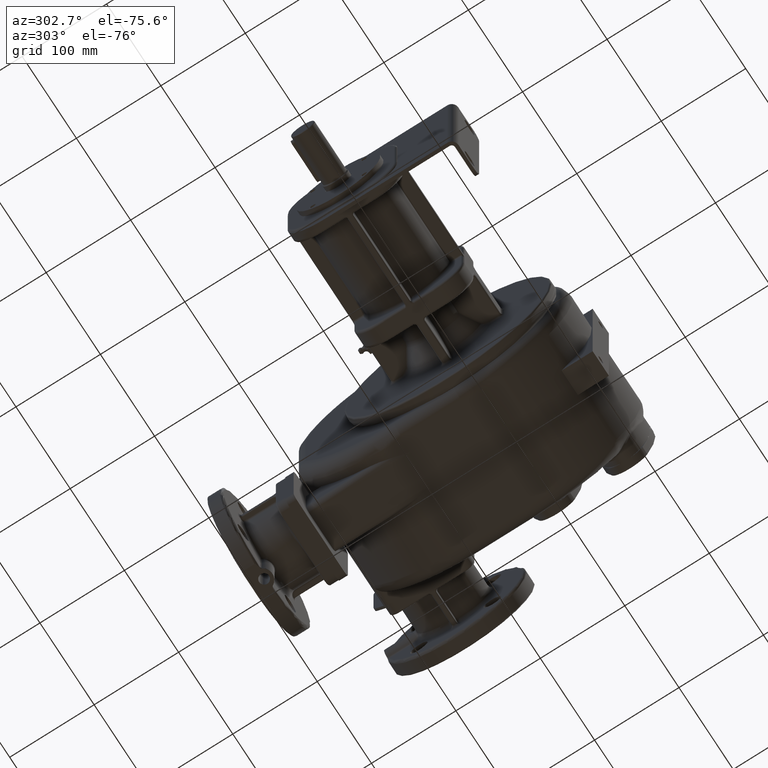
[diagram: clean part render]
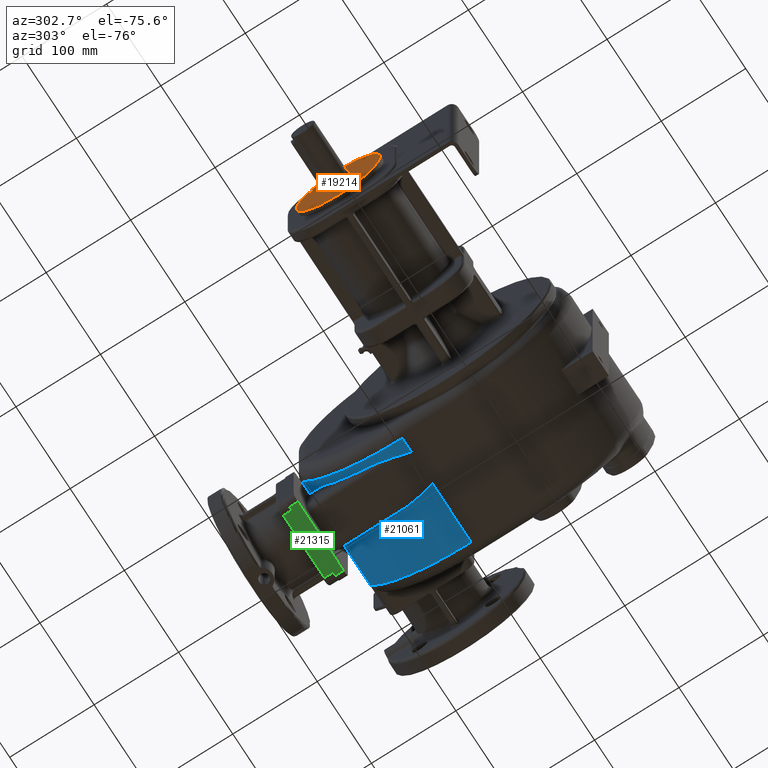
[diagram: same view with three faces highlighted in distinct colors, each labeled with its STEP entity id]
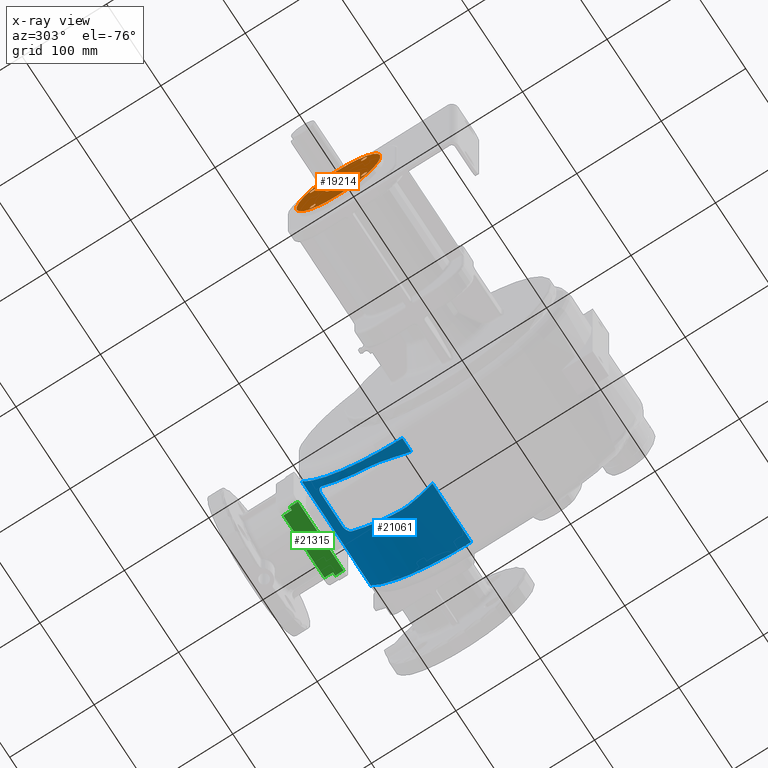
[diagram: x-ray of the same camera — body ghosted, the three highlighted faces saturated]
A machine part, auxiliary view with three faces highlighted in distinct colors.
The next image is the same camera in x-ray (body ghosted, the three faces saturated) — at least one of them is partly hidden behind the body in this view.
Their STEP definitions:

[orange] entity #19214 — the highlighted planar face has unit normal (-1, 0, 0).
#1217=CARTESIAN_POINT('',(-2.785E2,1.32E2,0.E0));
#1218=DIRECTION('',(-1.E0,0.E0,0.E0));
#1219=DIRECTION('',(0.E0,-1.599613797088E-14,-1.E0));
#1220=AXIS2_PLACEMENT_3D('',#1217,#1218,#1219);
#1226=CARTESIAN_POINT('',(-2.785E2,1.32E2,0.E0));
#1227=DIRECTION('',(1.E0,0.E0,0.E0));
#1228=DIRECTION('',(0.E0,-1.599613797088E-14,-1.E0));
#1229=AXIS2_PLACEMENT_3D('',#1226,#1227,#1228);
#1235=CARTESIAN_POINT('',(-2.785E2,1.624055915910E2,3.040559159102E1));
#1236=DIRECTION('',(1.E0,0.E0,0.E0));
#1237=DIRECTION('',(0.E0,1.624097681737E-14,1.E0));
#1238=AXIS2_PLACEMENT_3D('',#1235,#1236,#1237);
#1240=CARTESIAN_POINT('',(-2.785E2,1.624055915910E2,3.040559159102E1));
#1241=DIRECTION('',(1.E0,0.E0,0.E0));
#1242=DIRECTION('',(0.E0,-1.624097681737E-14,-1.E0));
#1243=AXIS2_PLACEMENT_3D('',#1240,#1241,#1242);
#1245=CARTESIAN_POINT('',(-2.785E2,1.624055915910E2,-3.040559159102E1));
#1246=DIRECTION('',(1.E0,0.E0,0.E0));
#1247=DIRECTION('',(0.E0,1.E0,-1.624097681737E-14));
#1248=AXIS2_PLACEMENT_3D('',#1245,#1246,#1247);
#1250=CARTESIAN_POINT('',(-2.785E2,1.624055915910E2,-3.040559159102E1));
#1251=DIRECTION('',(1.E0,0.E0,0.E0));
#1252=DIRECTION('',(0.E0,-1.E0,1.624097681737E-14));
#1253=AXIS2_PLACEMENT_3D('',#1250,#1251,#1252);
#1255=CARTESIAN_POINT('',(-2.785E2,1.015944084090E2,-3.040559159102E1));
#1256=DIRECTION('',(1.E0,0.E0,0.E0));
#1257=DIRECTION('',(0.E0,-1.624097681737E-14,-1.E0));
#1258=AXIS2_PLACEMENT_3D('',#1255,#1256,#1257);
#1260=CARTESIAN_POINT('',(-2.785E2,1.015944084090E2,-3.040559159102E1));
#1261=DIRECTION('',(1.E0,0.E0,0.E0));
#1262=DIRECTION('',(0.E0,1.624097681737E-14,1.E0));
#1263=AXIS2_PLACEMENT_3D('',#1260,#1261,#1262);
#1265=CARTESIAN_POINT('',(-2.785E2,1.015944084090E2,3.040559159102E1));
#1266=DIRECTION('',(1.E0,0.E0,0.E0));
#1267=DIRECTION('',(0.E0,-1.E0,1.624097681737E-14));
#1268=AXIS2_PLACEMENT_3D('',#1265,#1266,#1267);
#1270=CARTESIAN_POINT('',(-2.785E2,1.015944084090E2,3.040559159102E1));
#1271=DIRECTION('',(1.E0,0.E0,0.E0));
#1272=DIRECTION('',(0.E0,1.E0,-1.624097681737E-14));
#1273=AXIS2_PLACEMENT_3D('',#1270,#1271,#1272);
#1275=CARTESIAN_POINT('',(-2.785E2,1.32E2,0.E0));
#1276=DIRECTION('',(1.E0,0.E0,0.E0));
#1277=DIRECTION('',(0.E0,1.650292805636E-14,1.E0));
#1278=AXIS2_PLACEMENT_3D('',#1275,#1276,#1277);
#1280=CARTESIAN_POINT('',(-2.785E2,1.32E2,0.E0));
#1281=DIRECTION('',(1.E0,0.E0,0.E0));
#1282=DIRECTION('',(0.E0,-1.650292805636E-14,-1.E0));
#1283=AXIS2_PLACEMENT_3D('',#1280,#1281,#1282);
#18040=CARTESIAN_POINT('',(-2.785E2,1.32E2,-4.975E1));
#18041=CARTESIAN_POINT('',(-2.785E2,1.32E2,4.975E1));
#18042=VERTEX_POINT('',#18040);
#18043=VERTEX_POINT('',#18041);
#18044=CARTESIAN_POINT('',(-2.785E2,1.624055915910E2,3.390559159102E1));
#18045=CARTESIAN_POINT('',(-2.785E2,1.624055915910E2,2.690559159102E1));
#18046=VERTEX_POINT('',#18044);
#18047=VERTEX_POINT('',#18045);
#18048=CARTESIAN_POINT('',(-2.785E2,1.659055915910E2,-3.040559159102E1));
#18049=CARTESIAN_POINT('',(-2.785E2,1.589055915910E2,-3.040559159102E1));
#18050=VERTEX_POINT('',#18048);
#18051=VERTEX_POINT('',#18049);
#18052=CARTESIAN_POINT('',(-2.785E2,1.015944084090E2,-3.390559159102E1));
#18053=CARTESIAN_POINT('',(-2.785E2,1.015944084090E2,-2.690559159102E1));
#18054=VERTEX_POINT('',#18052);
#18055=VERTEX_POINT('',#18053);
#18056=CARTESIAN_POINT('',(-2.785E2,9.809440840898E1,3.040559159102E1));
#18057=CARTESIAN_POINT('',(-2.785E2,1.050944084090E2,3.040559159102E1));
#18058=VERTEX_POINT('',#18056);
#18059=VERTEX_POINT('',#18057);
#18060=CARTESIAN_POINT('',(-2.785E2,1.32E2,1.55E1));
#18061=CARTESIAN_POINT('',(-2.785E2,1.32E2,-1.55E1));
#18062=VERTEX_POINT('',#18060);
#18063=VERTEX_POINT('',#18061);
#19175=CARTESIAN_POINT('',(-2.785E2,1.32E2,0.E0));
#19176=DIRECTION('',(-1.E0,0.E0,0.E0));
#19177=DIRECTION('',(0.E0,1.626476731076E-14,1.E0));
#19178=AXIS2_PLACEMENT_3D('',#19175,#19176,#19177);
#19179=PLANE('',#19178);
#19180=ORIENTED_EDGE('',*,*,#19155,.F.);
#19181=ORIENTED_EDGE('',*,*,#19169,.T.);
#19182=EDGE_LOOP('',(#19180,#19181));
#19183=FACE_OUTER_BOUND('',#19182,.F.);
#19185=ORIENTED_EDGE('',*,*,#19184,.F.);
#19187=ORIENTED_EDGE('',*,*,#19186,.F.);
#19188=EDGE_LOOP('',(#19185,#19187));
#19189=FACE_BOUND('',#19188,.F.);
#19191=ORIENTED_EDGE('',*,*,#19190,.F.);
#19193=ORIENTED_EDGE('',*,*,#19192,.F.);
#19194=EDGE_LOOP('',(#19191,#19193));
#19195=FACE_BOUND('',#19194,.F.);
#19197=ORIENTED_EDGE('',*,*,#19196,.F.);
#19199=ORIENTED_EDGE('',*,*,#19198,.F.);
#19200=EDGE_LOOP('',(#19197,#19199));
#19201=FACE_BOUND('',#19200,.F.);
#19203=ORIENTED_EDGE('',*,*,#19202,.F.);
#19205=ORIENTED_EDGE('',*,*,#19204,.F.);
#19206=EDGE_LOOP('',(#19203,#19205));
#19207=FACE_BOUND('',#19206,.F.);
#19209=ORIENTED_EDGE('',*,*,#19208,.F.);
#19211=ORIENTED_EDGE('',*,*,#19210,.F.);
#19212=EDGE_LOOP('',(#19209,#19211));
#19213=FACE_BOUND('',#19212,.F.);
#19214=ADVANCED_FACE('',(#19183,#19189,#19195,#19201,#19207,#19213),#19179,.T.);
#1221=CIRCLE('',#1220,4.975E1);
#1230=CIRCLE('',#1229,4.975E1);
#1239=CIRCLE('',#1238,3.5E0);
#1244=CIRCLE('',#1243,3.5E0);
#1249=CIRCLE('',#1248,3.5E0);
#1254=CIRCLE('',#1253,3.5E0);
#1259=CIRCLE('',#1258,3.5E0);
#1264=CIRCLE('',#1263,3.5E0);
#1269=CIRCLE('',#1268,3.5E0);
#1274=CIRCLE('',#1273,3.5E0);
#1279=CIRCLE('',#1278,1.55E1);
#1284=CIRCLE('',#1283,1.55E1);
#19155=EDGE_CURVE('',#18042,#18043,#1221,.T.);
#19169=EDGE_CURVE('',#18042,#18043,#1230,.T.);
#19184=EDGE_CURVE('',#18046,#18047,#1239,.T.);
#19186=EDGE_CURVE('',#18047,#18046,#1244,.T.);
#19190=EDGE_CURVE('',#18050,#18051,#1249,.T.);
#19192=EDGE_CURVE('',#18051,#18050,#1254,.T.);
#19196=EDGE_CURVE('',#18054,#18055,#1259,.T.);
#19198=EDGE_CURVE('',#18055,#18054,#1264,.T.);
#19202=EDGE_CURVE('',#18058,#18059,#1269,.T.);
#19204=EDGE_CURVE('',#18059,#18058,#1274,.T.);
#19208=EDGE_CURVE('',#18062,#18063,#1279,.T.);
#19210=EDGE_CURVE('',#18063,#18062,#1284,.T.);

[blue] entity #21061 — the highlighted cylindrical surface (partial cylindrical patch) has radius 131 mm, axis along (-1, 0, 0).
#2815=DIRECTION('',(-9.999999999999E-1,-1.196786193784E-7,3.394288251132E-7));
#2816=VECTOR('',#2815,1.269991031286E2);
#2817=CARTESIAN_POINT('',(7.6E1,3.212649998907E2,-5.484959349593E1));
#2818=LINE('',#2817,#2816);
#2917=CARTESIAN_POINT('',(-4.25E1,2.023006266804E2,0.E0));
#2918=DIRECTION('',(-1.E0,0.E0,0.E0));
#2919=DIRECTION('',(0.E0,7.673559470460E-1,-6.412213740458E-1));
#2920=AXIS2_PLACEMENT_3D('',#2917,#2918,#2919);
#2922=DIRECTION('',(-1.E0,0.E0,0.E0));
#2923=VECTOR('',#2922,3.9E1);
#2924=CARTESIAN_POINT('',(4.5E0,3.090011421430E2,-7.6E1));
#2925=LINE('',#2924,#2923);
#2926=CARTESIAN_POINT('',(1.25E1,2.023006266804E2,0.E0));
#2927=DIRECTION('',(-1.E0,0.E0,0.E0));
#2928=DIRECTION('',(0.E0,7.673559470460E-1,-6.412213740458E-1));
#2929=AXIS2_PLACEMENT_3D('',#2926,#2927,#2928);
#2931=DIRECTION('',(1.E0,-5.557139829889E-12,0.E0));
#2932=VECTOR('',#2931,7.15E1);
#2933=CARTESIAN_POINT('',(4.5E0,2.023006266804E2,-1.31E2));
#2934=LINE('',#2933,#2932);
#2935=CARTESIAN_POINT('',(7.6E1,2.023006266804E2,0.E0));
#2936=DIRECTION('',(1.E0,0.E0,0.E0));
#2937=DIRECTION('',(0.E0,0.E0,-1.E0));
#2938=AXIS2_PLACEMENT_3D('',#2935,#2936,#2937);
#2940=CARTESIAN_POINT('',(-5.1E1,2.023006266804E2,0.E0));
#2941=DIRECTION('',(-1.E0,0.E0,0.E0));
#2942=DIRECTION('',(0.E0,9.081251261266E-1,-4.186988838026E-1));
#2943=AXIS2_PLACEMENT_3D('',#2940,#2941,#2942);
#2945=DIRECTION('',(1.E0,2.411538981974E-14,0.E0));
#2946=VECTOR('',#2945,1.65E1);
#2947=CARTESIAN_POINT('',(-5.1E1,2.023006266804E2,-1.31E2));
#2948=LINE('',#2947,#2946);
#2957=CARTESIAN_POINT('',(-3.45E1,3.090011421430E2,-7.6E1));
#2958=CARTESIAN_POINT('',(-3.459724486776E1,3.090011421430E2,-7.6E1));
#2959=CARTESIAN_POINT('',(-3.479181504130E1,3.089986168852E2,
-7.600354553474E1));
#2960=CARTESIAN_POINT('',(-3.508360184417E1,3.089872281471E2,
-7.601953226601E1));
#2961=CARTESIAN_POINT('',(-3.537469199050E1,3.089682462580E2,
-7.604616649539E1));
#2962=CARTESIAN_POINT('',(-3.566550405066E1,3.089415929579E2,
-7.608354106420E1));
#2963=CARTESIAN_POINT('',(-3.595537102771E1,3.089072468543E2,
-7.613166204421E1));
#2964=CARTESIAN_POINT('',(-3.624420752406E1,3.088651410500E2,
-7.619059231310E1));
#2965=CARTESIAN_POINT('',(-3.653204715585E1,3.088151399899E2,
-7.626048324387E1));
#2966=CARTESIAN_POINT('',(-3.681807699250E1,3.087572565823E2,
-7.634127128463E1));
#2967=CARTESIAN_POINT('',(-3.710262664661E1,3.086912711435E2,
-7.643320984477E1));
#2968=CARTESIAN_POINT('',(-3.738508148161E1,3.086171280341E2,
-7.653631494552E1));
#2969=CARTESIAN_POINT('',(-3.766508847851E1,3.085347319782E2,
-7.665065016117E1));
#2970=CARTESIAN_POINT('',(-3.794269574346E1,3.084438239556E2,
-7.677649667391E1));
#2971=CARTESIAN_POINT('',(-3.821703145047E1,3.083444356222E2,
-7.691372430686E1));
#2972=CARTESIAN_POINT('',(-3.848825222746E1,3.082362256190E2,
-7.706270875633E1));
#2973=CARTESIAN_POINT('',(-3.875553632871E1,3.081191961750E2,
-7.722334170492E1));
#2974=CARTESIAN_POINT('',(-3.901867919963E1,3.079931015693E2,
-7.739584647799E1));
#2975=CARTESIAN_POINT('',(-3.927717678390E1,3.078577912390E2,
-7.758030425889E1));
#2976=CARTESIAN_POINT('',(-3.953044465794E1,3.077131636607E2,
-7.777671980958E1));
#2977=CARTESIAN_POINT('',(-3.977810764060E1,3.075589736334E2,
-7.798528155474E1));
#2978=CARTESIAN_POINT('',(-4.001934075039E1,3.073952559270E2,
-7.820578941208E1));
#2979=CARTESIAN_POINT('',(-4.025399396553E1,3.072215710518E2,
-7.843867094021E1));
#2980=CARTESIAN_POINT('',(-4.048113648156E1,3.070379930416E2,
-7.868365079593E1));
#2981=CARTESIAN_POINT('',(-4.069990622179E1,3.068446253037E2,
-7.894041055938E1));
#2982=CARTESIAN_POINT('',(-4.090970358624E1,3.066413817646E2,
-7.920887831691E1));
#2983=CARTESIAN_POINT('',(-4.111019771927E1,3.064278372557E2,
-7.948941621964E1));
#2984=CARTESIAN_POINT('',(-4.130035077808E1,3.062042615388E2,
-7.978146109916E1));
#2985=CARTESIAN_POINT('',(-4.147918953071E1,3.059710319217E2,
-8.008431603510E1));
#2986=CARTESIAN_POINT('',(-4.164631423803E1,3.057278017253E2,
-8.039822123051E1));
#2987=CARTESIAN_POINT('',(-4.180090082711E1,3.054747298293E2,
-8.072275274667E1));
#2988=CARTESIAN_POINT('',(-4.194202662413E1,3.052122602071E2,
-8.105712624343E1));
#2989=CARTESIAN_POINT('',(-4.206887921156E1,3.049408626875E2,
-8.140053881093E1));
#2990=CARTESIAN_POINT('',(-4.218097661228E1,3.046603006435E2,
-8.175308321088E1));
#2991=CARTESIAN_POINT('',(-4.227739569685E1,3.043714068954E2,
-8.211351006068E1));
#2992=CARTESIAN_POINT('',(-4.235739556479E1,3.040750405582E2,
-8.248056919416E1));
#2993=CARTESIAN_POINT('',(-4.242044680207E1,3.037717196800E2,
-8.285345931517E1));
#2994=CARTESIAN_POINT('',(-4.246609495278E1,3.034616025940E2,
-8.323183269761E1));
#2995=CARTESIAN_POINT('',(-4.249378099853E1,3.031456660803E2,
-8.361435868256E1));
#2996=CARTESIAN_POINT('',(-4.25E1,3.029319000095E2,-8.387118104428E1));
#2997=CARTESIAN_POINT('',(-4.25E1,3.028242557434E2,-8.4E1));
#3012=CARTESIAN_POINT('',(1.25E1,3.028242557434E2,-8.4E1));
#3013=CARTESIAN_POINT('',(1.25E1,3.029319001551E2,-8.387118087009E1));
#3014=CARTESIAN_POINT('',(1.249378098688E1,3.031456661184E2,-8.361435863510E1));
#3015=CARTESIAN_POINT('',(1.246609505432E1,3.034616011975E2,-8.323183438534E1));
#3016=CARTESIAN_POINT('',(1.242044750055E1,3.037717158972E2,-8.285346395207E1));
#3017=CARTESIAN_POINT('',(1.235739612445E1,3.040750375877E2,-8.248057283764E1));
#3018=CARTESIAN_POINT('',(1.227740039745E1,3.043713905410E2,-8.211353035773E1));
#3019=CARTESIAN_POINT('',(1.218098344424E1,3.046602821339E2,-8.175310639450E1));
#3020=CARTESIAN_POINT('',(1.206888537713E1,3.049408487715E2,-8.140055637643E1));
#3021=CARTESIAN_POINT('',(1.194203144354E1,3.052122505007E2,-8.105713856071E1));
#3022=CARTESIAN_POINT('',(1.180091028362E1,3.054747130416E2,-8.072277418473E1));
#3023=CARTESIAN_POINT('',(1.164632458624E1,3.057277861940E2,-8.039824124108E1));
#3024=CARTESIAN_POINT('',(1.147919193994E1,3.059710286724E2,-8.008432024686E1));
#3025=CARTESIAN_POINT('',(1.130036007887E1,3.062042497351E2,-7.978147644989E1));
#3026=CARTESIAN_POINT('',(1.111020975584E1,3.064278237777E2,-7.948943387658E1));
#3027=CARTESIAN_POINT('',(1.090971380572E1,3.066413717636E2,-7.920889151945E1));
#3028=CARTESIAN_POINT('',(1.069990338802E1,3.068446279127E2,-7.894040710382E1));
#3029=CARTESIAN_POINT('',(1.048114726141E1,3.070379836631E2,-7.868366325970E1));
#3030=CARTESIAN_POINT('',(1.025400432831E1,3.072215631418E2,-7.843868153032E1));
#3031=CARTESIAN_POINT('',(1.001934748614E1,3.073952513261E2,-7.820579560639E1));
#3032=CARTESIAN_POINT('',(9.778105846781E0,3.075589747694E2,-7.798528002009E1));
#3033=CARTESIAN_POINT('',(9.530450897339E0,3.077131599459E2,-7.777672484409E1));
#3034=CARTESIAN_POINT('',(9.277174551714E0,3.078577924763E2,-7.758030257743E1));
#3035=CARTESIAN_POINT('',(9.018684525791E0,3.079930988930E2,-7.739585013171E1));
#3036=CARTESIAN_POINT('',(8.755533436978E0,3.081191975347E2,-7.722333984405E1));
#3037=CARTESIAN_POINT('',(8.488255993760E0,3.082362239907E2,-7.706271099200E1));
#3038=CARTESIAN_POINT('',(8.217031677502E0,3.083444355891E2,-7.691372435494E1));
#3039=CARTESIAN_POINT('',(7.942696480271E0,3.084438236573E2,-7.677649708472E1));
#3040=CARTESIAN_POINT('',(7.665091403858E0,3.085347311015E2,-7.665065137723E1));
#3041=CARTESIAN_POINT('',(7.385079733211E0,3.086171285169E2,-7.653631427480E1));
#3042=CARTESIAN_POINT('',(7.102630290181E0,3.086912702070E2,-7.643321114740E1));
#3043=CARTESIAN_POINT('',(6.818079624714E0,3.087572560249E2,-7.634127206230E1));
#3044=CARTESIAN_POINT('',(6.532050936199E0,3.088151392585E2,-7.626048426512E1));
#3045=CARTESIAN_POINT('',(6.244213445799E0,3.088651400819E2,-7.619059366707E1));
#3046=CARTESIAN_POINT('',(5.955378676321E0,3.089072458496E2,-7.613166345120E1));
#3047=CARTESIAN_POINT('',(5.665509321825E0,3.089415924243E2,-7.608354181234E1));
#3048=CARTESIAN_POINT('',(5.374696203747E0,3.089682459361E2,-7.604616694685E1));
#3049=CARTESIAN_POINT('',(5.083604442673E0,3.089872280294E2,-7.601953243129E1));
#3050=CARTESIAN_POINT('',(4.791815777660E0,3.089986168784E2,-7.600354554428E1));
#3051=CARTESIAN_POINT('',(4.597245045524E0,3.090011421430E2,-7.6E1));
#3052=CARTESIAN_POINT('',(4.5E0,3.090011421430E2,-7.6E1));
#3067=CARTESIAN_POINT('',(4.5E0,2.023006266804E2,-1.31E2));
#3068=CARTESIAN_POINT('',(4.727736695972E0,2.032221867946E2,-1.31E2));
#3069=CARTESIAN_POINT('',(5.182321418977E0,2.050617124844E2,-1.309805753678E2));
#3070=CARTESIAN_POINT('',(5.859071663427E0,2.078143816798E2,-1.308935201970E2));
#3071=CARTESIAN_POINT('',(6.523859954939E0,2.105465790915E2,-1.307496799500E2));
#3072=CARTESIAN_POINT('',(7.171379268795E0,2.132500234009E2,-1.305508733081E2));
#3073=CARTESIAN_POINT('',(7.795824866082E0,2.159133634673E2,-1.302998213292E2));
#3074=CARTESIAN_POINT('',(8.392813868005E0,2.185299431181E2,-1.299995446422E2));
#3075=CARTESIAN_POINT('',(8.958290726227E0,2.210931887684E2,-1.296534847563E2));
#3076=CARTESIAN_POINT('',(9.488319034254E0,2.235954805535E2,-1.292656637600E2));
#3077=CARTESIAN_POINT('',(9.977883236299E0,2.260213628826E2,-1.288420919612E2));
#3078=CARTESIAN_POINT('',(1.042449411197E1,2.283638414367E2,-1.283882799074E2));
#3079=CARTESIAN_POINT('',(1.083045175144E1,2.306396267241E2,-1.279049718178E2));
#3080=CARTESIAN_POINT('',(1.119825793896E1,2.328730116473E2,-1.273892891399E2));
#3081=CARTESIAN_POINT('',(1.151718057311E1,2.350061596496E2,-1.268575807240E2));
#3082=CARTESIAN_POINT('',(1.177678284526E1,2.369508627393E2,-1.263390145717E2));
#3083=CARTESIAN_POINT('',(1.197742542474E1,2.386542507745E2,-1.258584435303E2));
#3084=CARTESIAN_POINT('',(1.213594443659E1,2.401993593427E2,-1.254013156583E2));
#3085=CARTESIAN_POINT('',(1.226261170392E1,2.416515537144E2,-1.249530304816E2));
#3086=CARTESIAN_POINT('',(1.236460712547E1,2.430883625028E2,-1.244914566926E2));
#3087=CARTESIAN_POINT('',(1.244081404903E1,2.445238137150E2,-1.240119603618E2));
#3088=CARTESIAN_POINT('',(1.248868586956E1,2.459539290360E2,-1.235158024478E2));
#3089=CARTESIAN_POINT('',(1.25E1,2.469041774976E2,-1.231737726913E2));
#3090=CARTESIAN_POINT('',(1.25E1,2.473783373587E2,-1.23E2));
#5951=CARTESIAN_POINT('',(-4.25E1,2.473783373587E2,-1.23E2));
#5952=CARTESIAN_POINT('',(-4.25E1,2.469032896646E2,-1.231740980692E2));
#5953=CARTESIAN_POINT('',(-4.248862549183E1,2.459229492528E2,
-1.235271402122E2));
#5954=CARTESIAN_POINT('',(-4.243474763873E1,2.443612505757E2,
-1.240679798519E2));
#5955=CARTESIAN_POINT('',(-4.234171007546E1,2.427084724944E2,
-1.246164849619E2));
#5956=CARTESIAN_POINT('',(-4.220745705855E1,2.409639574121E2,
-1.251691565277E2));
#5957=CARTESIAN_POINT('',(-4.203013769897E1,2.391265198637E2,
-1.257224616767E2));
#5958=CARTESIAN_POINT('',(-4.180836171566E1,2.371966636606E2,
-1.262721982531E2));
#5959=CARTESIAN_POINT('',(-4.154091810173E1,2.351736410211E2,
-1.268143802411E2));
#5960=CARTESIAN_POINT('',(-4.122739965531E1,2.330600866980E2,
-1.273440165690E2));
#5961=CARTESIAN_POINT('',(-4.086777708970E1,2.308579407750E2,
-1.278563418462E2));
#5962=CARTESIAN_POINT('',(-4.046265783567E1,2.285703845816E2,
-1.283463406808E2));
#5963=CARTESIAN_POINT('',(-4.001332158917E1,2.262016198908E2,
-1.288089345767E2));
#5964=CARTESIAN_POINT('',(-3.952160200152E1,2.237562068219E2,
-1.292391866628E2));
#5965=CARTESIAN_POINT('',(-3.899014228508E1,2.212403044397E2,
-1.296321744622E2));
#5966=CARTESIAN_POINT('',(-3.842210521612E1,2.186602388800E2,
-1.299833407984E2));
#5967=CARTESIAN_POINT('',(-3.782140741864E1,2.160237194145E2,
-1.302883914704E2));
#5968=CARTESIAN_POINT('',(-3.719246075257E1,2.133387712594E2,
-1.305435490568E2));
#5969=CARTESIAN_POINT('',(-3.654021248756E1,2.106141522641E2,
-1.307455521025E2));
#5970=CARTESIAN_POINT('',(-3.587020629426E1,2.078597918418E2,
-1.308917568164E2));
#5971=CARTESIAN_POINT('',(-3.518801953874E1,2.050847713946E2,
-1.309802465130E2));
#5972=CARTESIAN_POINT('',(-3.472964907344E1,2.032299254279E2,-1.31E2));
#5973=CARTESIAN_POINT('',(-3.45E1,2.023006266804E2,-1.31E2));
#16120=CARTESIAN_POINT('',(4.5E0,2.023006266804E2,-1.31E2));
#16122=VERTEX_POINT('',#16120);
#16124=CARTESIAN_POINT('',(1.25E1,2.473783373587E2,-1.23E2));
#16126=VERTEX_POINT('',#16124);
#16128=CARTESIAN_POINT('',(1.25E1,3.028242557434E2,-8.4E1));
#16130=VERTEX_POINT('',#16128);
#16132=CARTESIAN_POINT('',(4.5E0,3.090011421430E2,-7.6E1));
#16134=VERTEX_POINT('',#16132);
#16136=CARTESIAN_POINT('',(-3.45E1,3.090011421430E2,-7.6E1));
#16138=VERTEX_POINT('',#16136);
#16140=CARTESIAN_POINT('',(-4.25E1,3.028242557434E2,-8.4E1));
#16142=VERTEX_POINT('',#16140);
#16144=CARTESIAN_POINT('',(-4.25E1,2.473783373587E2,-1.23E2));
#16146=VERTEX_POINT('',#16144);
#16148=CARTESIAN_POINT('',(-3.45E1,2.023006266804E2,-1.31E2));
#16150=VERTEX_POINT('',#16148);
#16200=CARTESIAN_POINT('',(7.6E1,2.023006266804E2,-1.31E2));
#16201=CARTESIAN_POINT('',(7.6E1,3.212649998907E2,-5.484959349594E1));
#16202=VERTEX_POINT('',#16200);
#16203=VERTEX_POINT('',#16201);
#16238=CARTESIAN_POINT('',(-5.1E1,3.212650182029E2,-5.484955377814E1));
#16239=CARTESIAN_POINT('',(-5.1E1,2.023006266804E2,-1.31E2));
#16240=VERTEX_POINT('',#16238);
#16241=VERTEX_POINT('',#16239);
#21032=CARTESIAN_POINT('',(-6.6E1,2.023006266804E2,0.E0));
#21033=DIRECTION('',(-1.E0,0.E0,0.E0));
#21034=DIRECTION('',(0.E0,0.E0,1.E0));
#21035=AXIS2_PLACEMENT_3D('',#21032,#21033,#21034);
#21036=CYLINDRICAL_SURFACE('',#21035,1.31E2);
#21038=ORIENTED_EDGE('',*,*,#21037,.F.);
#21040=ORIENTED_EDGE('',*,*,#21039,.F.);
#21042=ORIENTED_EDGE('',*,*,#21041,.F.);
#21044=ORIENTED_EDGE('',*,*,#21043,.F.);
#21046=ORIENTED_EDGE('',*,*,#21045,.T.);
#21048=ORIENTED_EDGE('',*,*,#21047,.F.);
#21050=ORIENTED_EDGE('',*,*,#21049,.T.);
#21052=ORIENTED_EDGE('',*,*,#21051,.T.);
#21053=ORIENTED_EDGE('',*,*,#20955,.T.);
#21054=ORIENTED_EDGE('',*,*,#21026,.T.);
#21056=ORIENTED_EDGE('',*,*,#21055,.T.);
#21058=ORIENTED_EDGE('',*,*,#21057,.F.);
#21059=EDGE_LOOP('',(#21038,#21040,#21042,#21044,#21046,#21048,#21050,#21052,
#21053,#21054,#21056,#21058));
#21060=FACE_OUTER_BOUND('',#21059,.F.);
#21061=ADVANCED_FACE('',(#21060),#21036,.T.);
#2921=CIRCLE('',#2920,1.31E2);
#2930=CIRCLE('',#2929,1.31E2);
#2939=CIRCLE('',#2938,1.31E2);
#2944=CIRCLE('',#2943,1.31E2);
#2998=B_SPLINE_CURVE_WITH_KNOTS('',3,(#2957,#2958,#2959,#2960,#2961,#2962,#2963,
#2964,#2965,#2966,#2967,#2968,#2969,#2970,#2971,#2972,#2973,#2974,#2975,#2976,
#2977,#2978,#2979,#2980,#2981,#2982,#2983,#2984,#2985,#2986,#2987,#2988,#2989,
#2990,#2991,#2992,#2993,#2994,#2995,#2996,#2997),.UNSPECIFIED.,.F.,.F.,(4,1,1,1,
1,1,1,1,1,1,1,1,1,1,1,1,1,1,1,1,1,1,1,1,1,1,1,1,1,1,1,1,1,1,1,1,1,1,4),(0.E0,
2.631578947368E-2,5.263157894737E-2,7.894736842105E-2,1.052631578947E-1,
1.315789473684E-1,1.578947368421E-1,1.842105263158E-1,2.105263157895E-1,
2.368421052632E-1,2.631578947368E-1,2.894736842105E-1,3.157894736842E-1,
3.421052631579E-1,3.684210526316E-1,3.947368421053E-1,4.210526315789E-1,
4.473684210526E-1,4.736842105263E-1,5.E-1,5.263157894737E-1,5.526315789474E-1,
5.789473684211E-1,6.052631578947E-1,6.315789473684E-1,6.578947368421E-1,
6.842105263158E-1,7.105263157895E-1,7.368421052632E-1,7.631578947368E-1,
7.894736842105E-1,8.157894736842E-1,8.421052631579E-1,8.684210526316E-1,
8.947368421053E-1,9.210526315789E-1,9.473684210526E-1,9.736842105263E-1,1.E0),
.UNSPECIFIED.);
#3053=B_SPLINE_CURVE_WITH_KNOTS('',3,(#3012,#3013,#3014,#3015,#3016,#3017,#3018,
#3019,#3020,#3021,#3022,#3023,#3024,#3025,#3026,#3027,#3028,#3029,#3030,#3031,
#3032,#3033,#3034,#3035,#3036,#3037,#3038,#3039,#3040,#3041,#3042,#3043,#3044,
#3045,#3046,#3047,#3048,#3049,#3050,#3051,#3052),.UNSPECIFIED.,.F.,.F.,(4,1,1,1,
1,1,1,1,1,1,1,1,1,1,1,1,1,1,1,1,1,1,1,1,1,1,1,1,1,1,1,1,1,1,1,1,1,1,4),(0.E0,
2.631578947368E-2,5.263157894737E-2,7.894736842105E-2,1.052631578947E-1,
1.315789473684E-1,1.578947368421E-1,1.842105263158E-1,2.105263157895E-1,
2.368421052632E-1,2.631578947368E-1,2.894736842105E-1,3.157894736842E-1,
3.421052631579E-1,3.684210526316E-1,3.947368421053E-1,4.210526315789E-1,
4.473684210526E-1,4.736842105263E-1,5.E-1,5.263157894737E-1,5.526315789474E-1,
5.789473684211E-1,6.052631578947E-1,6.315789473684E-1,6.578947368421E-1,
6.842105263158E-1,7.105263157895E-1,7.368421052632E-1,7.631578947368E-1,
7.894736842105E-1,8.157894736842E-1,8.421052631579E-1,8.684210526316E-1,
8.947368421053E-1,9.210526315789E-1,9.473684210526E-1,9.736842105263E-1,1.E0),
.UNSPECIFIED.);
#3091=B_SPLINE_CURVE_WITH_KNOTS('',3,(#3067,#3068,#3069,#3070,#3071,#3072,#3073,
#3074,#3075,#3076,#3077,#3078,#3079,#3080,#3081,#3082,#3083,#3084,#3085,#3086,
#3087,#3088,#3089,#3090),.UNSPECIFIED.,.F.,.F.,(4,1,1,1,1,1,1,1,1,1,1,1,1,1,1,1,
1,1,1,1,1,4),(0.E0,4.761904761905E-2,9.523809523810E-2,1.428571428571E-1,
1.904761904762E-1,2.380952380952E-1,2.857142857143E-1,3.333333333333E-1,
3.809523809524E-1,4.285714285714E-1,4.761904761905E-1,5.238095238095E-1,
5.714285714286E-1,6.190476190476E-1,6.666666666667E-1,7.142857142857E-1,
7.619047619048E-1,8.095238095238E-1,8.571428571429E-1,9.047619047619E-1,
9.523809523810E-1,1.E0),.UNSPECIFIED.);
#5974=B_SPLINE_CURVE_WITH_KNOTS('',3,(#5951,#5952,#5953,#5954,#5955,#5956,#5957,
#5958,#5959,#5960,#5961,#5962,#5963,#5964,#5965,#5966,#5967,#5968,#5969,#5970,
#5971,#5972,#5973),.UNSPECIFIED.,.F.,.F.,(4,1,1,1,1,1,1,1,1,1,1,1,1,1,1,1,1,1,1,
1,4),(0.E0,5.E-2,1.E-1,1.5E-1,2.E-1,2.5E-1,3.E-1,3.5E-1,4.E-1,4.5E-1,5.E-1,
5.5E-1,6.E-1,6.5E-1,7.E-1,7.5E-1,8.E-1,8.5E-1,9.E-1,9.5E-1,1.E0),.UNSPECIFIED.);
#20955=EDGE_CURVE('',#16203,#16240,#2818,.T.);
#21026=EDGE_CURVE('',#16240,#16241,#2944,.T.);
#21037=EDGE_CURVE('',#16142,#16146,#2921,.T.);
#21039=EDGE_CURVE('',#16138,#16142,#2998,.T.);
#21041=EDGE_CURVE('',#16134,#16138,#2925,.T.);
#21043=EDGE_CURVE('',#16130,#16134,#3053,.T.);
#21045=EDGE_CURVE('',#16130,#16126,#2930,.T.);
#21047=EDGE_CURVE('',#16122,#16126,#3091,.T.);
#21049=EDGE_CURVE('',#16122,#16202,#2934,.T.);
#21051=EDGE_CURVE('',#16202,#16203,#2939,.T.);
#21055=EDGE_CURVE('',#16241,#16150,#2948,.T.);
#21057=EDGE_CURVE('',#16146,#16150,#5974,.T.);

[green] entity #21315 — the highlighted planar face has unit normal (0, 0, -1).
#3136=DIRECTION('',(1.E0,0.E0,0.E0));
#3137=VECTOR('',#3136,8.4E1);
#3138=CARTESIAN_POINT('',(-5.7E1,3.22E2,-1.535E2));
#3139=LINE('',#3138,#3137);
#3234=DIRECTION('',(1.093880541703E-11,1.E0,0.E0));
#3235=VECTOR('',#3234,1.E1);
#3236=CARTESIAN_POINT('',(-5.3E1,3.32E2,-1.535E2));
#3237=LINE('',#3236,#3235);
#3247=DIRECTION('',(-1.E0,0.E0,0.E0));
#3248=VECTOR('',#3247,7.599999999986E1);
#3249=CARTESIAN_POINT('',(2.299999999997E1,3.42E2,-1.535E2));
#3250=LINE('',#3249,#3248);
#3251=DIRECTION('',(0.E0,1.E0,0.E0));
#3252=VECTOR('',#3251,1.E1);
#3253=CARTESIAN_POINT('',(-5.7E1,3.22E2,-1.535E2));
#3254=LINE('',#3253,#3252);
#3255=DIRECTION('',(0.E0,1.E0,0.E0));
#3256=VECTOR('',#3255,1.E1);
#3257=CARTESIAN_POINT('',(2.7E1,3.22E2,-1.535E2));
#3258=LINE('',#3257,#3256);
#3268=DIRECTION('',(2.969713364109E-12,-1.E0,0.E0));
#3269=VECTOR('',#3268,1.E1);
#3270=CARTESIAN_POINT('',(2.299999999997E1,3.42E2,-1.535E2));
#3271=LINE('',#3270,#3269);
#5920=DIRECTION('',(1.E0,0.E0,0.E0));
#5921=VECTOR('',#5920,4.E0);
#5922=CARTESIAN_POINT('',(2.3E1,3.32E2,-1.535E2));
#5923=LINE('',#5922,#5921);
#5947=DIRECTION('',(1.E0,0.E0,0.E0));
#5948=VECTOR('',#5947,4.E0);
#5949=CARTESIAN_POINT('',(-5.7E1,3.32E2,-1.535E2));
#5950=LINE('',#5949,#5948);
#16160=CARTESIAN_POINT('',(-5.7E1,3.32E2,-1.535E2));
#16162=VERTEX_POINT('',#16160);
#16166=CARTESIAN_POINT('',(-5.7E1,3.22E2,-1.535E2));
#16167=VERTEX_POINT('',#16166);
#16177=CARTESIAN_POINT('',(2.7E1,3.32E2,-1.535E2));
#16179=VERTEX_POINT('',#16177);
#16180=CARTESIAN_POINT('',(2.7E1,3.22E2,-1.535E2));
#16181=VERTEX_POINT('',#16180);
#16590=CARTESIAN_POINT('',(2.3E1,3.32E2,-1.535E2));
#16592=VERTEX_POINT('',#16590);
#16595=CARTESIAN_POINT('',(-5.3E1,3.32E2,-1.535E2));
#16597=VERTEX_POINT('',#16595);
#16780=CARTESIAN_POINT('',(-5.3E1,3.42E2,-1.535E2));
#16781=VERTEX_POINT('',#16780);
#16784=CARTESIAN_POINT('',(2.299999999997E1,3.42E2,-1.535E2));
#16785=VERTEX_POINT('',#16784);
#21294=CARTESIAN_POINT('',(-6.5E1,3.32E2,-1.535E2));
#21295=DIRECTION('',(0.E0,0.E0,-1.E0));
#21296=DIRECTION('',(1.E0,0.E0,0.E0));
#21297=AXIS2_PLACEMENT_3D('',#21294,#21295,#21296);
#21298=PLANE('',#21297);
#21300=ORIENTED_EDGE('',*,*,#21299,.F.);
#21302=ORIENTED_EDGE('',*,*,#21301,.T.);
#21303=ORIENTED_EDGE('',*,*,#21284,.F.);
#21305=ORIENTED_EDGE('',*,*,#21304,.F.);
#21307=ORIENTED_EDGE('',*,*,#21306,.F.);
#21308=ORIENTED_EDGE('',*,*,#21182,.T.);
#21310=ORIENTED_EDGE('',*,*,#21309,.T.);
#21312=ORIENTED_EDGE('',*,*,#21311,.F.);
#21313=EDGE_LOOP('',(#21300,#21302,#21303,#21305,#21307,#21308,#21310,#21312));
#21314=FACE_OUTER_BOUND('',#21313,.F.);
#21315=ADVANCED_FACE('',(#21314),#21298,.T.);
#21182=EDGE_CURVE('',#16167,#16181,#3139,.T.);
#21284=EDGE_CURVE('',#16597,#16781,#3237,.T.);
#21299=EDGE_CURVE('',#16785,#16592,#3271,.T.);
#21301=EDGE_CURVE('',#16785,#16781,#3250,.T.);
#21304=EDGE_CURVE('',#16162,#16597,#5950,.T.);
#21306=EDGE_CURVE('',#16167,#16162,#3254,.T.);
#21309=EDGE_CURVE('',#16181,#16179,#3258,.T.);
#21311=EDGE_CURVE('',#16592,#16179,#5923,.T.);